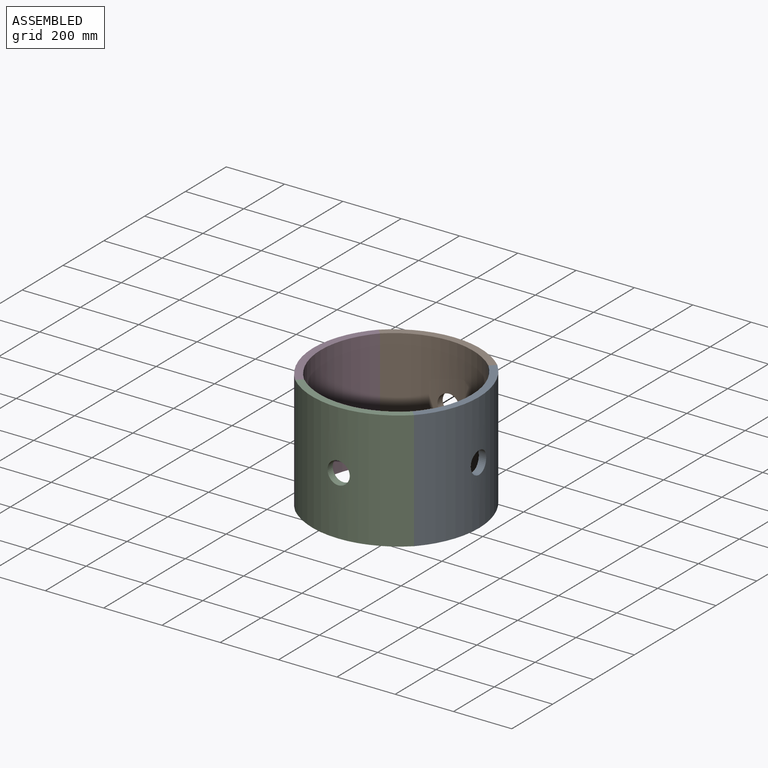
[diagram: assembled view]
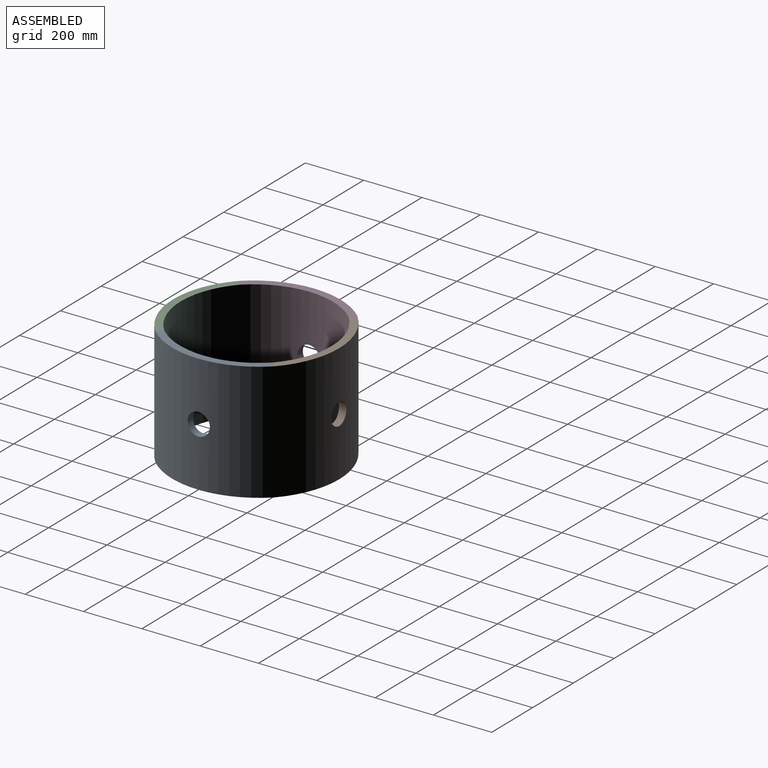
[diagram: assembled view, second angle]
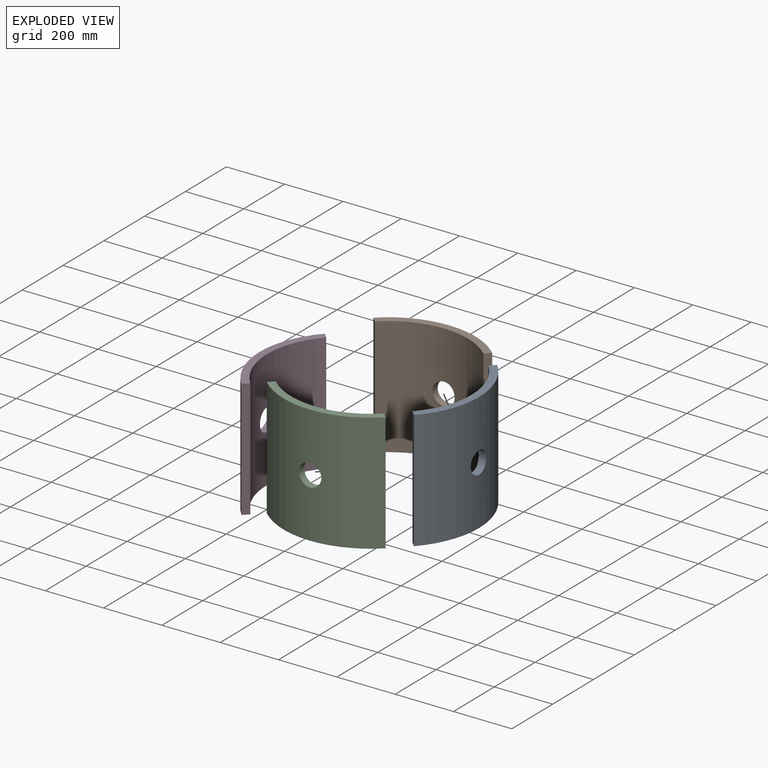
[diagram: exploded view]
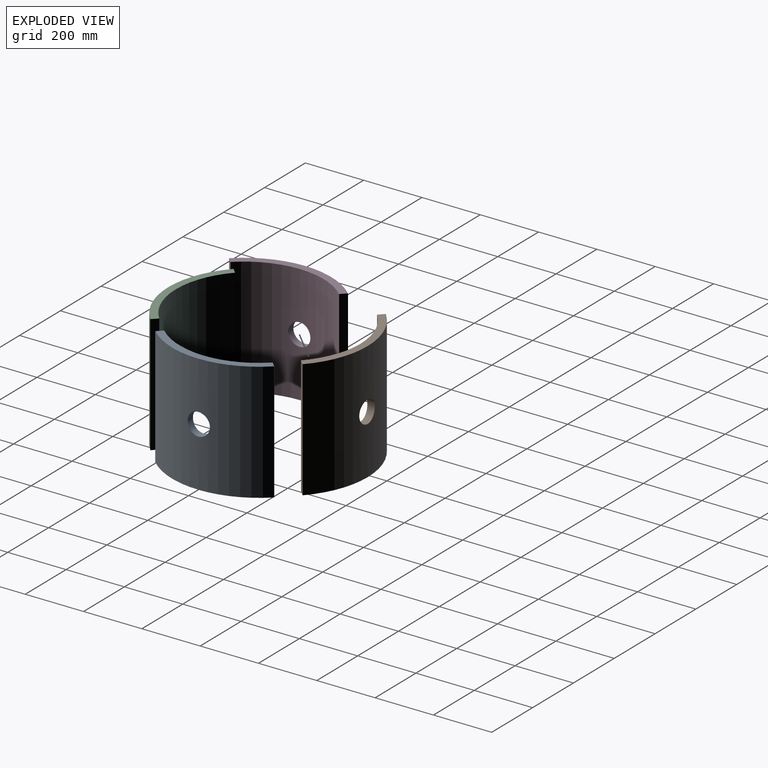
[diagram: exploded view, second angle]
ASSEMBLY  parts=4 mates=3
PART A: 7 faces, bbox 98.5x407.8x406.4 mm
  f0: plane 407.83x98.5mm, normal (0,0,1), area 10897.6mm2, adj f1,f2,f4,f5
  f1: cylinder r=298.45mm len=407.83mm, axis (0,0,-1), area 177892.5mm2, adj f0,f3,f4,f5,f6
  f2: cylinder r=273.05mm len=406.4mm, axis (0,0,-1), area 161675.8mm2, adj f0,f3,f4,f5,f6
  f3: plane 407.83x98.5mm, normal (0,0,-1), area 10897.6mm2, adj f1,f2,f4,f5
  f4: plane 406.4x17.97mm, normal (-0.71,0.71,0), area 10328.8mm2, adj f0,f1,f2,f3
  f5: plane 406.4x17.97mm, normal (-0.71,-0.71,0), area 10328.8mm2, adj f0,f1,f2,f3
  f6: cylinder r=38.1mm len=76.2mm, axis (1,0,0), area 6107.8mm2, adj f1,f2
PART B: 7 faces, bbox 407.8x98.5x406.4 mm
  f0: plane 407.83x98.5mm, normal (0,0,1), area 10897.6mm2, adj f1,f2,f4,f5
  f1: cylinder r=298.45mm len=407.83mm, axis (0,0,-1), area 177892.5mm2, adj f0,f3,f4,f5,f6
  f2: cylinder r=273.05mm len=406.4mm, axis (0,0,-1), area 161675.8mm2, adj f0,f3,f4,f5,f6
  f3: plane 407.83x98.5mm, normal (0,0,-1), area 10897.6mm2, adj f1,f2,f4,f5
  f4: plane 406.4x17.97mm, normal (0.71,-0.71,0), area 10328.8mm2, adj f0,f1,f2,f3
  f5: plane 406.4x17.97mm, normal (-0.71,-0.71,0), area 10328.8mm2, adj f0,f1,f2,f3
  f6: cylinder r=38.1mm len=76.2mm, axis (0,-1,0), area 6107.9mm2, adj f1,f2
PART C: 7 faces, bbox 407.8x98.5x406.4 mm
  f0: cylinder r=273.05mm len=406.4mm, axis (0,0,-1), area 161675.8mm2, adj f2,f3,f4,f5,f6
  f1: cylinder r=298.45mm len=407.83mm, axis (0,0,-1), area 177892.5mm2, adj f2,f3,f4,f5,f6
  f2: plane 407.83x98.5mm, normal (0,0,1), area 10897.6mm2, adj f0,f1,f4,f5
  f3: plane 407.83x98.5mm, normal (0,0,-1), area 10897.6mm2, adj f0,f1,f4,f5
  f4: plane 406.4x17.97mm, normal (-0.71,0.71,0), area 10328.8mm2, adj f0,f1,f2,f3
  f5: plane 406.4x17.97mm, normal (0.71,0.71,0), area 10328.8mm2, adj f0,f1,f2,f3
  f6: cylinder r=38.1mm len=76.2mm, axis (0,-1,0), area 6107.8mm2, adj f0,f1
PART D: 7 faces, bbox 98.5x407.8x406.4 mm
  f0: plane 407.83x98.5mm, normal (0,0,1), area 10897.6mm2, adj f1,f2,f4,f5
  f1: cylinder r=298.45mm len=407.83mm, axis (0,0,-1), area 177892.5mm2, adj f0,f3,f4,f5,f6
  f2: cylinder r=273.05mm len=406.4mm, axis (0,0,-1), area 161675.8mm2, adj f0,f3,f4,f5,f6
  f3: plane 407.83x98.5mm, normal (0,0,-1), area 10897.6mm2, adj f1,f2,f4,f5
  f4: plane 406.4x17.97mm, normal (0.71,0.71,0), area 10328.8mm2, adj f0,f1,f2,f3
  f5: plane 406.4x17.97mm, normal (0.71,-0.71,0), area 10328.8mm2, adj f0,f1,f2,f3
  f6: cylinder r=38.1mm len=76.2mm, axis (1,0,0), area 6107.9mm2, adj f1,f2
PLACE A t=(-122.39,16.72,-88.11)mm
PLACE B t=(-108.38,2.72,-88.11)mm
PLACE C t=(-108.38,30.73,-88.11)mm
PLACE D t=(-94.37,16.72,-88.11)mm
MATE fastened B.f4 <-> A.f4  axis (0.71,-0.71,0) through (77.56,202.67,318.29)mm
MATE fastened B.f5 <-> D.f4  axis (-0.71,-0.71,0) through (-294.32,202.67,318.29)mm
MATE fastened A.f5 <-> C.f5  axis (-0.71,-0.71,0) through (77.56,-169.22,318.29)mm
